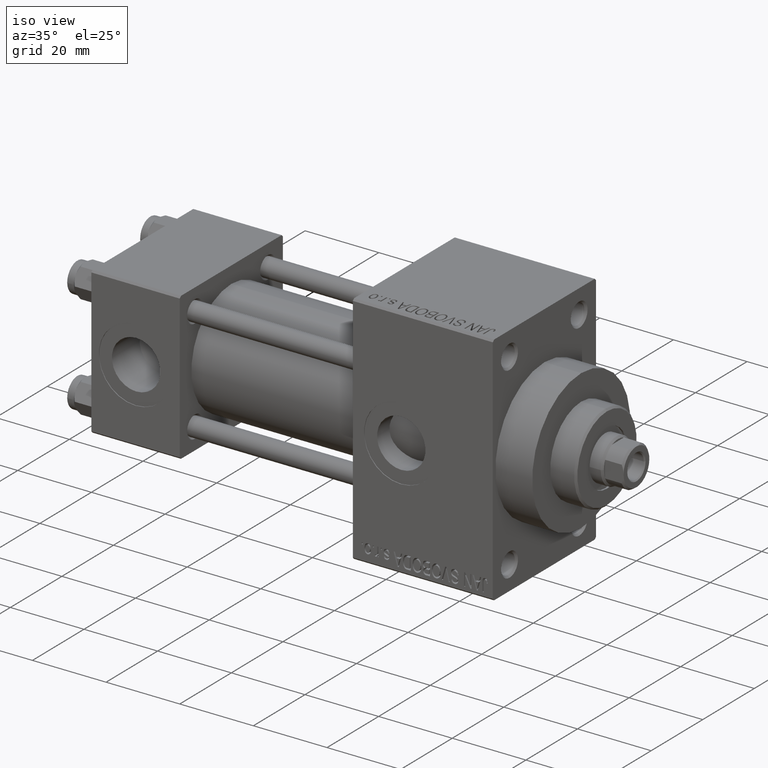
[diagram: clean part render]
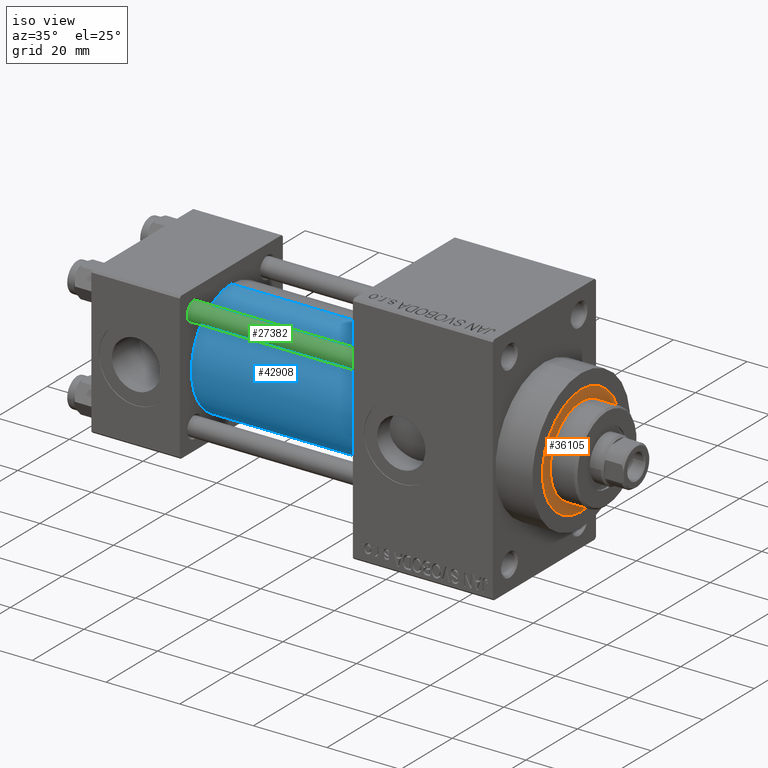
[diagram: same view with three faces highlighted in distinct colors, each labeled with its STEP entity id]
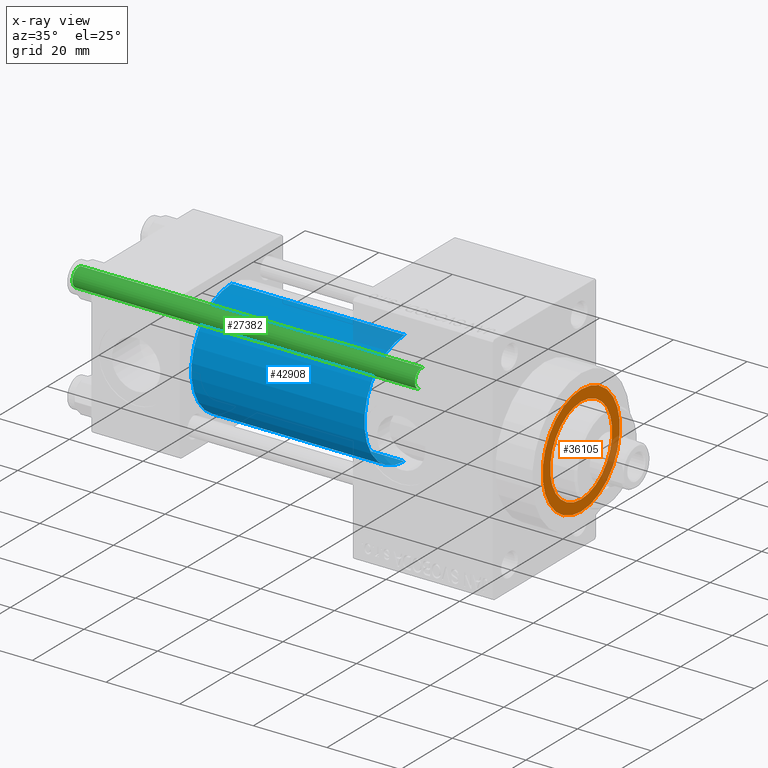
[diagram: x-ray of the same camera — body ghosted, the three highlighted faces saturated]
A machine part, iso view with three faces highlighted in distinct colors.
The next image is the same camera in x-ray (body ghosted, the three faces saturated) — at least one of them is partly hidden behind the body in this view.
Their STEP definitions:

[orange] entity #36105 — the highlighted planar face has unit normal (1, -0, -0).
#2541 = DIRECTION ( 'NONE',  ( 1.000000000000000000, 0.000000000000000000, 0.000000000000000000 ) ) ;
#3104 = AXIS2_PLACEMENT_3D ( 'NONE', #13073, #31451, #31937 ) ;
#4275 = DIRECTION ( 'NONE',  ( 0.000000000000000000, 0.000000000000000000, 1.000000000000000000 ) ) ;
#5333 = PLANE ( 'NONE',  #23165 ) ;
#6373 = CARTESIAN_POINT ( 'NONE',  ( 15.00000000000000000, 1.836970198721029589E-15, 43.25999999999999801 ) ) ;
#9419 = CARTESIAN_POINT ( 'NONE',  ( -15.00000000000000000, 0.000000000000000000, 43.25999999999999801 ) ) ;
#9516 = CIRCLE ( 'NONE', #13444, 15.00000000000000000 ) ;
#12104 = EDGE_LOOP ( 'NONE', ( #19129, #17669 ) ) ;
#12198 = AXIS2_PLACEMENT_3D ( 'NONE', #40460, #32291, #2541 ) ;
#12372 = EDGE_CURVE ( 'NONE', #17004, #32694, #36716, .T. ) ;
#12520 = EDGE_CURVE ( 'NONE', #32694, #17004, #20057, .T. ) ;
#12947 = AXIS2_PLACEMENT_3D ( 'NONE', #37976, #19123, #30551 ) ;
#13073 = CARTESIAN_POINT ( 'NONE',  ( 0.000000000000000000, 0.000000000000000000, 43.25999999999999801 ) ) ;
#13444 = AXIS2_PLACEMENT_3D ( 'NONE', #35411, #4275, #39373 ) ;
#17004 = VERTEX_POINT ( 'NONE', #44647 ) ;
#17669 = ORIENTED_EDGE ( 'NONE', *, *, #40023, .T. ) ;
#19123 = DIRECTION ( 'NONE',  ( 0.000000000000000000, 0.000000000000000000, 1.000000000000000000 ) ) ;
#19129 = ORIENTED_EDGE ( 'NONE', *, *, #36919, .T. ) ;
#19184 = VERTEX_POINT ( 'NONE', #6373 ) ;
#20057 = CIRCLE ( 'NONE', #12947, 12.00000000000000178 ) ;
#20433 = DIRECTION ( 'NONE',  ( 0.000000000000000000, 0.000000000000000000, 1.000000000000000000 ) ) ;
#20920 = DIRECTION ( 'NONE',  ( 1.000000000000000000, 0.000000000000000000, -0.000000000000000000 ) ) ;
#23165 = AXIS2_PLACEMENT_3D ( 'NONE', #24903, #20433, #20920 ) ;
#24903 = CARTESIAN_POINT ( 'NONE',  ( 0.000000000000000000, 0.000000000000000000, 43.25999999999999801 ) ) ;
#30551 = DIRECTION ( 'NONE',  ( 1.000000000000000000, 0.000000000000000000, 0.000000000000000000 ) ) ;
#30818 = CIRCLE ( 'NONE', #3104, 15.00000000000000000 ) ;
#31451 = DIRECTION ( 'NONE',  ( 0.000000000000000000, 0.000000000000000000, 1.000000000000000000 ) ) ;
#31937 = DIRECTION ( 'NONE',  ( 1.000000000000000000, 0.000000000000000000, 0.000000000000000000 ) ) ;
#32291 = DIRECTION ( 'NONE',  ( 0.000000000000000000, 0.000000000000000000, 1.000000000000000000 ) ) ;
#32694 = VERTEX_POINT ( 'NONE', #38675 ) ;
#33783 = ORIENTED_EDGE ( 'NONE', *, *, #12372, .F. ) ;
#34685 = FACE_OUTER_BOUND ( 'NONE', #12104, .T. ) ;
#35411 = CARTESIAN_POINT ( 'NONE',  ( 0.000000000000000000, 0.000000000000000000, 43.25999999999999801 ) ) ;
#36105 = ADVANCED_FACE ( 'NONE', ( #40031, #34685 ), #5333, .T. ) ;
#36526 = VERTEX_POINT ( 'NONE', #9419 ) ;
#36716 = CIRCLE ( 'NONE', #12198, 12.00000000000000178 ) ;
#36919 = EDGE_CURVE ( 'NONE', #36526, #19184, #30818, .T. ) ;
#37976 = CARTESIAN_POINT ( 'NONE',  ( 0.000000000000000000, 0.000000000000000000, 43.25999999999999801 ) ) ;
#38409 = EDGE_LOOP ( 'NONE', ( #42415, #33783 ) ) ;
#38675 = CARTESIAN_POINT ( 'NONE',  ( -12.00000000000000178, 0.000000000000000000, 43.25999999999999801 ) ) ;
#39373 = DIRECTION ( 'NONE',  ( 1.000000000000000000, 0.000000000000000000, 0.000000000000000000 ) ) ;
#40023 = EDGE_CURVE ( 'NONE', #19184, #36526, #9516, .T. ) ;
#40031 = FACE_BOUND ( 'NONE', #38409, .T. ) ;
#40460 = CARTESIAN_POINT ( 'NONE',  ( 0.000000000000000000, 0.000000000000000000, 43.25999999999999801 ) ) ;
#42415 = ORIENTED_EDGE ( 'NONE', *, *, #12520, .F. ) ;
#44647 = CARTESIAN_POINT ( 'NONE',  ( 12.00000000000000178, 1.469576158976824144E-15, 43.25999999999999801 ) ) ;

[blue] entity #42908 — the highlighted cylindrical surface (partial cylindrical patch) has radius 15.5 mm, axis along (-1, -0, -0).
#565 = LINE ( 'NONE', #8491, #27783 ) ;
#956 = VERTEX_POINT ( 'NONE', #24585 ) ;
#1399 = CARTESIAN_POINT ( 'NONE',  ( 71.00000000000001421, -2.602085213965210642E-15, 15.50000000000000000 ) ) ;
#3499 = CYLINDRICAL_SURFACE ( 'NONE', #23092, 15.50000000000000000 ) ;
#3692 = CARTESIAN_POINT ( 'NONE',  ( 71.00000000000001421, -2.602085213965210642E-15, 0.000000000000000000 ) ) ;
#4622 = LINE ( 'NONE', #9058, #17359 ) ;
#7415 = DIRECTION ( 'NONE',  ( 0.000000000000000000, 0.000000000000000000, -1.000000000000000000 ) ) ;
#8491 = CARTESIAN_POINT ( 'NONE',  ( 71.00000000000001421, -2.602085213965210642E-15, 15.50000000000000000 ) ) ;
#8582 = DIRECTION ( 'NONE',  ( -1.000000000000000000, -0.000000000000000000, -0.000000000000000000 ) ) ;
#8728 = DIRECTION ( 'NONE',  ( -1.000000000000000000, -0.000000000000000000, -0.000000000000000000 ) ) ;
#9058 = CARTESIAN_POINT ( 'NONE',  ( 71.00000000000001421, -7.038826752868131828E-16, -15.50000000000000000 ) ) ;
#10384 = VERTEX_POINT ( 'NONE', #37651 ) ;
#12049 = CIRCLE ( 'NONE', #31064, 15.50000000000000000 ) ;
#14393 = DIRECTION ( 'NONE',  ( -1.000000000000000000, -0.000000000000000000, -0.000000000000000000 ) ) ;
#16584 = ORIENTED_EDGE ( 'NONE', *, *, #47429, .T. ) ;
#17359 = VECTOR ( 'NONE', #8582, 1000.000000000000000 ) ;
#18731 = DIRECTION ( 'NONE',  ( 1.000000000000000000, 0.000000000000000000, 0.000000000000000000 ) ) ;
#20188 = CARTESIAN_POINT ( 'NONE',  ( 24.00000000000000000, -2.602085213965210642E-15, 15.50000000000000000 ) ) ;
#20825 = FACE_OUTER_BOUND ( 'NONE', #48862, .T. ) ;
#23092 = AXIS2_PLACEMENT_3D ( 'NONE', #47877, #14393, #44389 ) ;
#24585 = CARTESIAN_POINT ( 'NONE',  ( 24.00000000000000000, -7.038826752868131828E-16, -15.50000000000000000 ) ) ;
#27171 = VERTEX_POINT ( 'NONE', #20188 ) ;
#27783 = VECTOR ( 'NONE', #8728, 1000.000000000000000 ) ;
#30958 = DIRECTION ( 'NONE',  ( 1.000000000000000000, 0.000000000000000000, 0.000000000000000000 ) ) ;
#31064 = AXIS2_PLACEMENT_3D ( 'NONE', #37588, #18731, #33880 ) ;
#31528 = EDGE_CURVE ( 'NONE', #44144, #27171, #565, .T. ) ;
#33880 = DIRECTION ( 'NONE',  ( 0.000000000000000000, 0.000000000000000000, 1.000000000000000000 ) ) ;
#37588 = CARTESIAN_POINT ( 'NONE',  ( 24.00000000000000000, -2.602085213965210642E-15, 0.000000000000000000 ) ) ;
#37651 = CARTESIAN_POINT ( 'NONE',  ( 71.00000000000001421, -7.038826752868131828E-16, -15.50000000000000000 ) ) ;
#38177 = AXIS2_PLACEMENT_3D ( 'NONE', #3692, #30958, #7415 ) ;
#38497 = EDGE_CURVE ( 'NONE', #10384, #956, #4622, .T. ) ;
#40745 = ORIENTED_EDGE ( 'NONE', *, *, #38497, .F. ) ;
#42908 = ADVANCED_FACE ( 'NONE', ( #20825 ), #3499, .T. ) ;
#43694 = CIRCLE ( 'NONE', #38177, 15.50000000000000000 ) ;
#44023 = EDGE_CURVE ( 'NONE', #44144, #10384, #43694, .T. ) ;
#44144 = VERTEX_POINT ( 'NONE', #1399 ) ;
#44151 = ORIENTED_EDGE ( 'NONE', *, *, #31528, .T. ) ;
#44389 = DIRECTION ( 'NONE',  ( 0.000000000000000000, 0.000000000000000000, 1.000000000000000000 ) ) ;
#47429 = EDGE_CURVE ( 'NONE', #27171, #956, #12049, .T. ) ;
#47877 = CARTESIAN_POINT ( 'NONE',  ( 71.00000000000001421, -2.602085213965210642E-15, 0.000000000000000000 ) ) ;
#48468 = ORIENTED_EDGE ( 'NONE', *, *, #44023, .F. ) ;
#48862 = EDGE_LOOP ( 'NONE', ( #40745, #48468, #44151, #16584 ) ) ;

[green] entity #27382 — the highlighted cylindrical surface (edge-blend (fillet) strip) has radius 2.5 mm, axis along (1, 0, 0).
#678 = VECTOR ( 'NONE', #40080, 1000.000000000000000 ) ;
#3120 = CIRCLE ( 'NONE', #39545, 2.500000000000000000 ) ;
#3584 = CARTESIAN_POINT ( 'NONE',  ( 0.000000000000000000, 0.000000000000000000, 94.00000000000000000 ) ) ;
#3858 = AXIS2_PLACEMENT_3D ( 'NONE', #3584, #23150, #34077 ) ;
#3915 = DIRECTION ( 'NONE',  ( -0.000000000000000000, -0.000000000000000000, -1.000000000000000000 ) ) ;
#4200 = AXIS2_PLACEMENT_3D ( 'NONE', #9764, #47706, #42981 ) ;
#4210 = EDGE_CURVE ( 'NONE', #13905, #10392, #37876, .T. ) ;
#5780 = CIRCLE ( 'NONE', #4200, 2.500000000000000000 ) ;
#6334 = CARTESIAN_POINT ( 'NONE',  ( 2.500000000000000000, 3.061616997868383141E-16, 93.50000000000001421 ) ) ;
#7144 = VECTOR ( 'NONE', #3915, 1000.000000000000000 ) ;
#9764 = CARTESIAN_POINT ( 'NONE',  ( 0.000000000000000000, 0.000000000000000000, 93.50000000000001421 ) ) ;
#10090 = EDGE_CURVE ( 'NONE', #18960, #13905, #5780, .T. ) ;
#10392 = VERTEX_POINT ( 'NONE', #15076 ) ;
#11263 = FACE_OUTER_BOUND ( 'NONE', #19326, .T. ) ;
#11703 = CARTESIAN_POINT ( 'NONE',  ( 0.000000000000000000, 0.000000000000000000, 0.5000000000000004441 ) ) ;
#12687 = ORIENTED_EDGE ( 'NONE', *, *, #26873, .F. ) ;
#13579 = ORIENTED_EDGE ( 'NONE', *, *, #4210, .T. ) ;
#13905 = VERTEX_POINT ( 'NONE', #6334 ) ;
#15076 = CARTESIAN_POINT ( 'NONE',  ( 2.500000000000000000, 3.061616997868383141E-16, 0.5000000000000004441 ) ) ;
#16762 = LINE ( 'NONE', #24706, #678 ) ;
#18278 = CARTESIAN_POINT ( 'NONE',  ( -2.500000000000000000, 0.000000000000000000, 0.5000000000000004441 ) ) ;
#18960 = VERTEX_POINT ( 'NONE', #49064 ) ;
#19326 = EDGE_LOOP ( 'NONE', ( #39406, #13579, #41228, #12687 ) ) ;
#22607 = DIRECTION ( 'NONE',  ( -0.000000000000000000, -0.000000000000000000, 1.000000000000000000 ) ) ;
#23150 = DIRECTION ( 'NONE',  ( -0.000000000000000000, -0.000000000000000000, -1.000000000000000000 ) ) ;
#24706 = CARTESIAN_POINT ( 'NONE',  ( -2.500000000000000000, 0.000000000000000000, 94.00000000000000000 ) ) ;
#26487 = CARTESIAN_POINT ( 'NONE',  ( 2.500000000000000000, 3.061616997868383141E-16, 94.00000000000000000 ) ) ;
#26873 = EDGE_CURVE ( 'NONE', #18960, #48773, #16762, .T. ) ;
#27382 = ADVANCED_FACE ( 'NONE', ( #11263 ), #45957, .T. ) ;
#28684 = EDGE_CURVE ( 'NONE', #10392, #48773, #3120, .T. ) ;
#30557 = DIRECTION ( 'NONE',  ( 1.000000000000000000, 0.000000000000000000, 0.000000000000000000 ) ) ;
#34077 = DIRECTION ( 'NONE',  ( -1.000000000000000000, 0.000000000000000000, 0.000000000000000000 ) ) ;
#37876 = LINE ( 'NONE', #26487, #7144 ) ;
#39406 = ORIENTED_EDGE ( 'NONE', *, *, #10090, .T. ) ;
#39545 = AXIS2_PLACEMENT_3D ( 'NONE', #11703, #22607, #30557 ) ;
#40080 = DIRECTION ( 'NONE',  ( -0.000000000000000000, -0.000000000000000000, -1.000000000000000000 ) ) ;
#41228 = ORIENTED_EDGE ( 'NONE', *, *, #28684, .T. ) ;
#42981 = DIRECTION ( 'NONE',  ( 1.000000000000000000, 0.000000000000000000, 0.000000000000000000 ) ) ;
#45957 = CYLINDRICAL_SURFACE ( 'NONE', #3858, 2.500000000000000000 ) ;
#47706 = DIRECTION ( 'NONE',  ( 0.000000000000000000, 0.000000000000000000, -1.000000000000000000 ) ) ;
#48773 = VERTEX_POINT ( 'NONE', #18278 ) ;
#49064 = CARTESIAN_POINT ( 'NONE',  ( -2.500000000000000000, 0.000000000000000000, 93.50000000000001421 ) ) ;